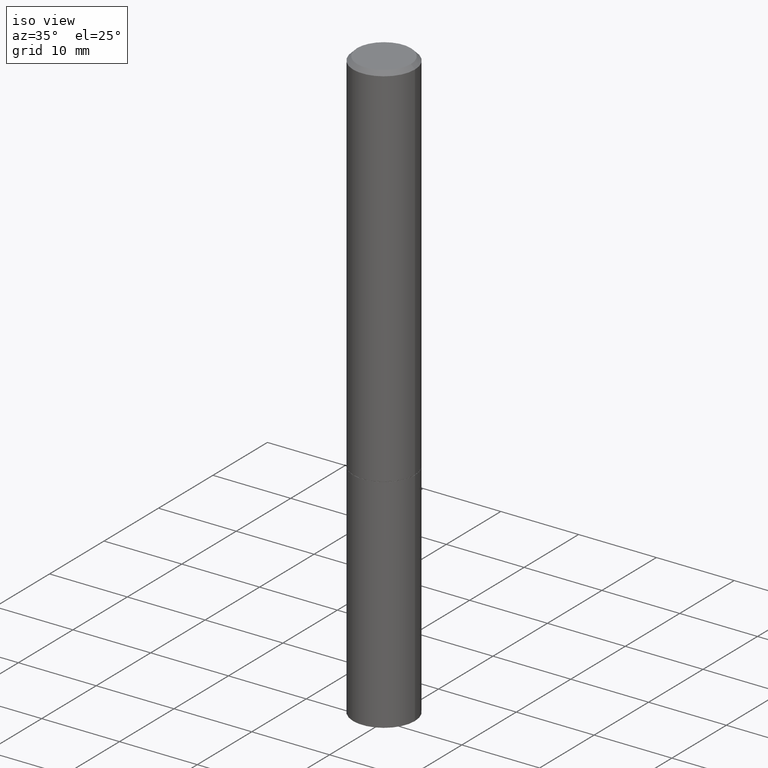
[diagram: clean part render]
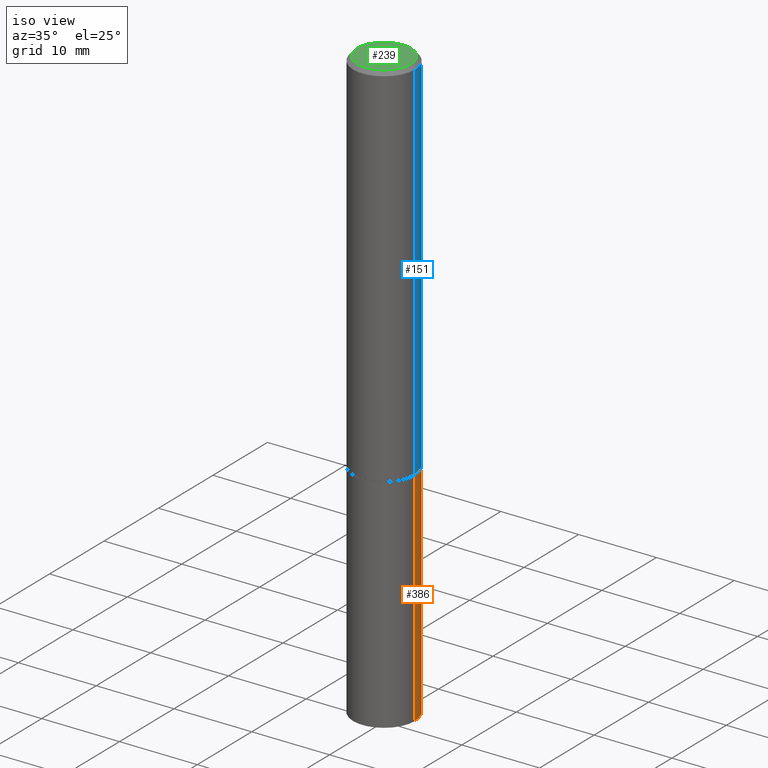
[diagram: same view with three faces highlighted in distinct colors, each labeled with its STEP entity id]
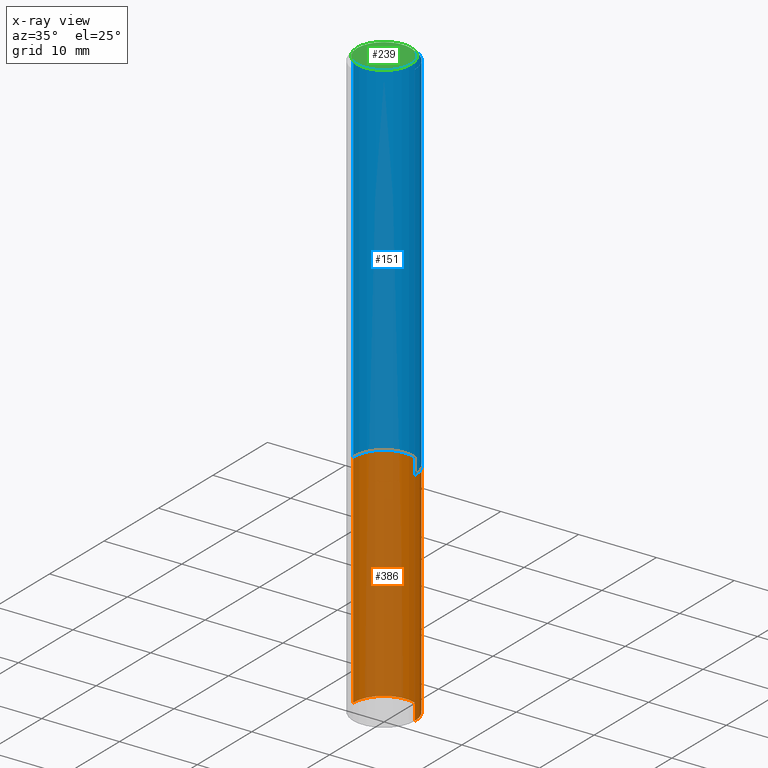
[diagram: x-ray of the same camera — body ghosted, the three highlighted faces saturated]
A machine part, iso view with three faces highlighted in distinct colors.
The next image is the same camera in x-ray (body ghosted, the three faces saturated) — at least one of them is partly hidden behind the body in this view.
Their STEP definitions:

[orange] entity #386 — the highlighted cylindrical surface (partial cylindrical patch) has radius 3.9688 mm, axis along (-0, 0, 1).
#5 = DIRECTION ( 'NONE',  ( -2.445468806185136597E-29, 3.491481338843145583E-15, 1.000000000000000000 ) ) ;
#7 = EDGE_CURVE ( 'NONE', #108, #316, #301, .T. ) ;
#33 = ORIENTED_EDGE ( 'NONE', *, *, #383, .T. ) ;
#34 = CIRCLE ( 'NONE', #223, 0.1562500000000000000 ) ;
#51 = ORIENTED_EDGE ( 'NONE', *, *, #7, .F. ) ;
#79 = DIRECTION ( 'NONE',  ( 1.000000000000000000, -6.982962677686269077E-15, 0.000000000000000000 ) ) ;
#97 = FACE_OUTER_BOUND ( 'NONE', #159, .T. ) ;
#106 = AXIS2_PLACEMENT_3D ( 'NONE', #345, #227, #79 ) ;
#107 = AXIS2_PLACEMENT_3D ( 'NONE', #160, #329, #192 ) ;
#108 = VERTEX_POINT ( 'NONE', #209 ) ;
#110 = EDGE_CURVE ( 'NONE', #370, #316, #324, .T. ) ;
#115 = CARTESIAN_POINT ( 'NONE',  ( -0.1562500000000000000, 1.110223024625156540E-15, -7.685836078523291160E-30 ) ) ;
#137 = EDGE_CURVE ( 'NONE', #246, #108, #322, .T. ) ;
#159 = EDGE_LOOP ( 'NONE', ( #33, #310, #51, #194 ) ) ;
#160 = CARTESIAN_POINT ( 'NONE',  ( 0.000000000000000000, 0.000000000000000000, 0.000000000000000000 ) ) ;
#181 = VECTOR ( 'NONE', #269, 39.37007874015748143 ) ;
#192 = DIRECTION ( 'NONE',  ( 1.000000000000000000, -6.982962677686266711E-15, 4.876176775795936353E-29 ) ) ;
#194 = ORIENTED_EDGE ( 'NONE', *, *, #137, .F. ) ;
#209 = CARTESIAN_POINT ( 'NONE',  ( 0.1562500000000000000, -7.637615428719378669E-15, -1.875000000000000000 ) ) ;
#216 = CARTESIAN_POINT ( 'NONE',  ( 0.1562500000000000000, -1.091087918388479174E-15, 7.619026212181150377E-30 ) ) ;
#220 = CARTESIAN_POINT ( 'NONE',  ( 7.336406418555409790E-29, -1.047444401652943635E-14, -3.000000000000000444 ) ) ;
#223 = AXIS2_PLACEMENT_3D ( 'NONE', #220, #5, #363 ) ;
#227 = DIRECTION ( 'NONE',  ( -2.445468806185136597E-29, 3.491481338843145583E-15, 1.000000000000000000 ) ) ;
#246 = VERTEX_POINT ( 'NONE', #352 ) ;
#269 = DIRECTION ( 'NONE',  ( -2.445468806185136877E-29, 3.491481338843145188E-15, 1.000000000000000000 ) ) ;
#301 = CIRCLE ( 'NONE', #106, 0.1562500000000000000 ) ;
#303 = CYLINDRICAL_SURFACE ( 'NONE', #107, 0.1562500000000000000 ) ;
#310 = ORIENTED_EDGE ( 'NONE', *, *, #110, .T. ) ;
#316 = VERTEX_POINT ( 'NONE', #335 ) ;
#322 = LINE ( 'NONE', #216, #389 ) ;
#324 = LINE ( 'NONE', #115, #181 ) ;
#329 = DIRECTION ( 'NONE',  ( -2.445468806185136597E-29, 3.491481338843145583E-15, 1.000000000000000000 ) ) ;
#335 = CARTESIAN_POINT ( 'NONE',  ( -0.1562500000000000000, -7.400262738805011779E-15, -1.875000000000000000 ) ) ;
#345 = CARTESIAN_POINT ( 'NONE',  ( 4.585254011597131119E-29, -6.546527510330898707E-15, -1.875000000000000000 ) ) ;
#352 = CARTESIAN_POINT ( 'NONE',  ( 0.1562499999999997224, -1.154639682868123816E-14, -3.000000000000000444 ) ) ;
#363 = DIRECTION ( 'NONE',  ( 1.000000000000000000, -6.982962677686262766E-15, 0.000000000000000000 ) ) ;
#369 = CARTESIAN_POINT ( 'NONE',  ( -0.1562499999999997224, -9.383356098140961124E-15, -3.000000000000000444 ) ) ;
#370 = VERTEX_POINT ( 'NONE', #369 ) ;
#381 = DIRECTION ( 'NONE',  ( -2.445468806185136877E-29, 3.491481338843145188E-15, 1.000000000000000000 ) ) ;
#383 = EDGE_CURVE ( 'NONE', #246, #370, #34, .T. ) ;
#386 = ADVANCED_FACE ( 'NONE', ( #97 ), #303, .T. ) ;
#389 = VECTOR ( 'NONE', #381, 39.37007874015748143 ) ;

[blue] entity #151 — the highlighted cylindrical surface (partial cylindrical patch) has radius 3.9687 mm, axis along (-0, 0, 1).
#13 = VERTEX_POINT ( 'NONE', #81 ) ;
#31 = CARTESIAN_POINT ( 'NONE',  ( 0.1562499999999999167, -1.091087918388478385E-15, 7.619026212181144772E-30 ) ) ;
#36 = EDGE_CURVE ( 'NONE', #304, #174, #89, .T. ) ;
#44 = DIRECTION ( 'NONE',  ( 1.000000000000000000, -6.982962677686265133E-15, 0.000000000000000000 ) ) ;
#52 = VERTEX_POINT ( 'NONE', #82 ) ;
#60 = DIRECTION ( 'NONE',  ( 1.000000000000000000, -6.982962677686265133E-15, 4.876176775795935232E-29 ) ) ;
#66 = EDGE_CURVE ( 'NONE', #52, #13, #195, .T. ) ;
#81 = CARTESIAN_POINT ( 'NONE',  ( -0.1562499999999998057, 1.021258291611614692E-15, -0.02000000000000003511 ) ) ;
#82 = CARTESIAN_POINT ( 'NONE',  ( 0.1562499999999998057, -1.141782438928663330E-15, -0.02000000000000003511 ) ) ;
#89 = CIRCLE ( 'NONE', #361, 0.1562500000000000000 ) ;
#102 = LINE ( 'NONE', #31, #187 ) ;
#122 = CARTESIAN_POINT ( 'NONE',  ( -0.1562500000000000000, -2.196209803259300198E-15, -1.874000000000000110 ) ) ;
#126 = AXIS2_PLACEMENT_3D ( 'NONE', #317, #290, #60 ) ;
#151 = ADVANCED_FACE ( 'NONE', ( #390 ), #241, .T. ) ;
#154 = VECTOR ( 'NONE', #254, 39.37007874015748143 ) ;
#168 = EDGE_LOOP ( 'NONE', ( #372, #368, #221, #186 ) ) ;
#174 = VERTEX_POINT ( 'NONE', #122 ) ;
#185 = DIRECTION ( 'NONE',  ( -2.445468806185136877E-29, 3.491481338843145188E-15, 1.000000000000000000 ) ) ;
#186 = ORIENTED_EDGE ( 'NONE', *, *, #295, .F. ) ;
#187 = VECTOR ( 'NONE', #185, 39.37007874015748143 ) ;
#195 = CIRCLE ( 'NONE', #332, 0.1562499999999998057 ) ;
#202 = DIRECTION ( 'NONE',  ( -2.445468806185136597E-29, 3.491481338843145583E-15, 1.000000000000000000 ) ) ;
#221 = ORIENTED_EDGE ( 'NONE', *, *, #66, .F. ) ;
#241 = CYLINDRICAL_SURFACE ( 'NONE', #126, 0.1562499999999999167 ) ;
#251 = CARTESIAN_POINT ( 'NONE',  ( -0.1562499999999999167, 1.110223024625155949E-15, -7.685836078523285555E-30 ) ) ;
#254 = DIRECTION ( 'NONE',  ( -2.445468806185136877E-29, 3.491481338843145188E-15, 1.000000000000000000 ) ) ;
#271 = CARTESIAN_POINT ( 'NONE',  ( 0.1562500000000000000, -7.634123947380534085E-15, -1.874000000000000110 ) ) ;
#285 = CARTESIAN_POINT ( 'NONE',  ( 4.582808542790945516E-29, -6.543036028992054911E-15, -1.874000000000000110 ) ) ;
#287 = EDGE_CURVE ( 'NONE', #174, #13, #300, .T. ) ;
#290 = DIRECTION ( 'NONE',  ( -2.445468806185136597E-29, 3.491481338843145583E-15, 1.000000000000000000 ) ) ;
#295 = EDGE_CURVE ( 'NONE', #304, #52, #102, .T. ) ;
#300 = LINE ( 'NONE', #251, #154 ) ;
#304 = VERTEX_POINT ( 'NONE', #271 ) ;
#307 = DIRECTION ( 'NONE',  ( -2.445468806185136597E-29, 3.491481338843145583E-15, 1.000000000000000000 ) ) ;
#312 = DIRECTION ( 'NONE',  ( 1.000000000000000000, -6.982962677686269077E-15, 0.000000000000000000 ) ) ;
#317 = CARTESIAN_POINT ( 'NONE',  ( 0.000000000000000000, 0.000000000000000000, 0.000000000000000000 ) ) ;
#332 = AXIS2_PLACEMENT_3D ( 'NONE', #371, #307, #44 ) ;
#361 = AXIS2_PLACEMENT_3D ( 'NONE', #285, #202, #312 ) ;
#368 = ORIENTED_EDGE ( 'NONE', *, *, #287, .T. ) ;
#371 = CARTESIAN_POINT ( 'NONE',  ( 4.890937612370281041E-31, -6.982962677686302702E-17, -0.02000000000000003511 ) ) ;
#372 = ORIENTED_EDGE ( 'NONE', *, *, #36, .T. ) ;
#390 = FACE_OUTER_BOUND ( 'NONE', #168, .T. ) ;

[green] entity #239 — the highlighted planar face has unit normal (0, -0, -1).
#21 = CARTESIAN_POINT ( 'NONE',  ( 0.000000000000000000, 0.000000000000000000, 0.000000000000000000 ) ) ;
#26 = DIRECTION ( 'NONE',  ( -2.445468806185136597E-29, 3.491481338843145583E-15, 1.000000000000000000 ) ) ;
#28 = AXIS2_PLACEMENT_3D ( 'NONE', #21, #314, #197 ) ;
#37 = CARTESIAN_POINT ( 'NONE',  ( 0.1362499999999998157, -1.038262645562516744E-15, 6.957025900226686667E-30 ) ) ;
#50 = EDGE_CURVE ( 'NONE', #114, #366, #131, .T. ) ;
#56 = AXIS2_PLACEMENT_3D ( 'NONE', #145, #267, #240 ) ;
#77 = AXIS2_PLACEMENT_3D ( 'NONE', #387, #26, #143 ) ;
#86 = FACE_OUTER_BOUND ( 'NONE', #256, .T. ) ;
#101 = CIRCLE ( 'NONE', #77, 0.1362499999999998157 ) ;
#114 = VERTEX_POINT ( 'NONE', #205 ) ;
#131 = CIRCLE ( 'NONE', #28, 0.1362499999999998157 ) ;
#143 = DIRECTION ( 'NONE',  ( 1.000000000000000000, -6.982962677686266711E-15, 4.876176775795935232E-29 ) ) ;
#145 = CARTESIAN_POINT ( 'NONE',  ( 9.514286648347523799E-16, 0.1362499999999998157, -4.757143324173778663E-16 ) ) ;
#176 = PLANE ( 'NONE',  #56 ) ;
#197 = DIRECTION ( 'NONE',  ( 1.000000000000000000, -6.982962677686266711E-15, 4.876176775795935232E-29 ) ) ;
#205 = CARTESIAN_POINT ( 'NONE',  ( -0.1362499999999998157, 9.863434782231836346E-16, -6.775751096333130074E-30 ) ) ;
#225 = EDGE_CURVE ( 'NONE', #366, #114, #101, .T. ) ;
#239 = ADVANCED_FACE ( 'NONE', ( #86 ), #176, .F. ) ;
#240 = DIRECTION ( 'NONE',  ( -1.000000000000000000, 6.982962677686265922E-15, -4.876176775795935793E-29 ) ) ;
#256 = EDGE_LOOP ( 'NONE', ( #376, #277 ) ) ;
#267 = DIRECTION ( 'NONE',  ( 2.438088387897960049E-29, -3.491481338843145188E-15, -1.000000000000000000 ) ) ;
#277 = ORIENTED_EDGE ( 'NONE', *, *, #225, .T. ) ;
#314 = DIRECTION ( 'NONE',  ( -2.445468806185136597E-29, 3.491481338843145583E-15, 1.000000000000000000 ) ) ;
#366 = VERTEX_POINT ( 'NONE', #37 ) ;
#376 = ORIENTED_EDGE ( 'NONE', *, *, #50, .T. ) ;
#387 = CARTESIAN_POINT ( 'NONE',  ( 0.000000000000000000, 0.000000000000000000, 0.000000000000000000 ) ) ;